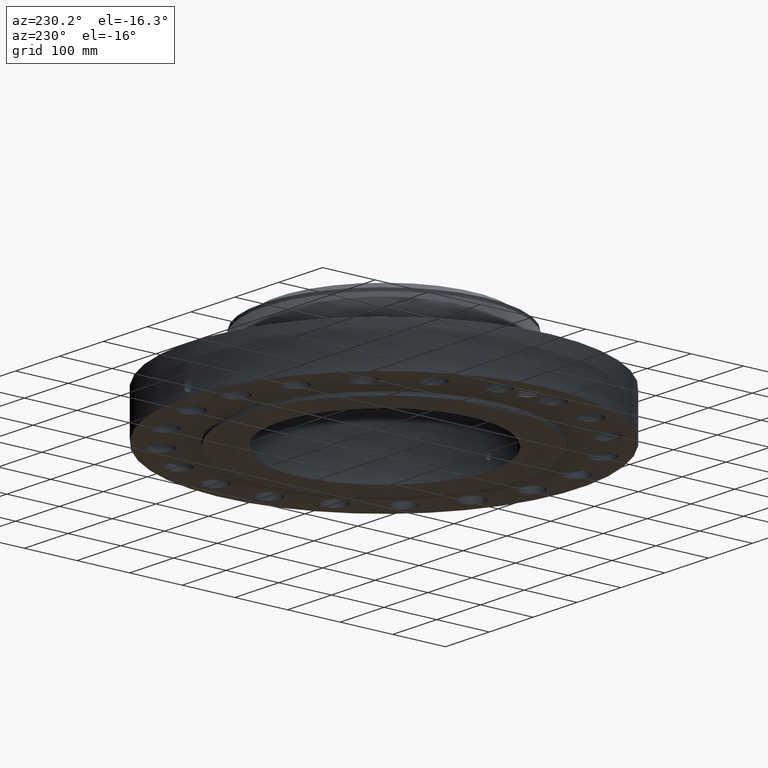
[diagram: clean part render]
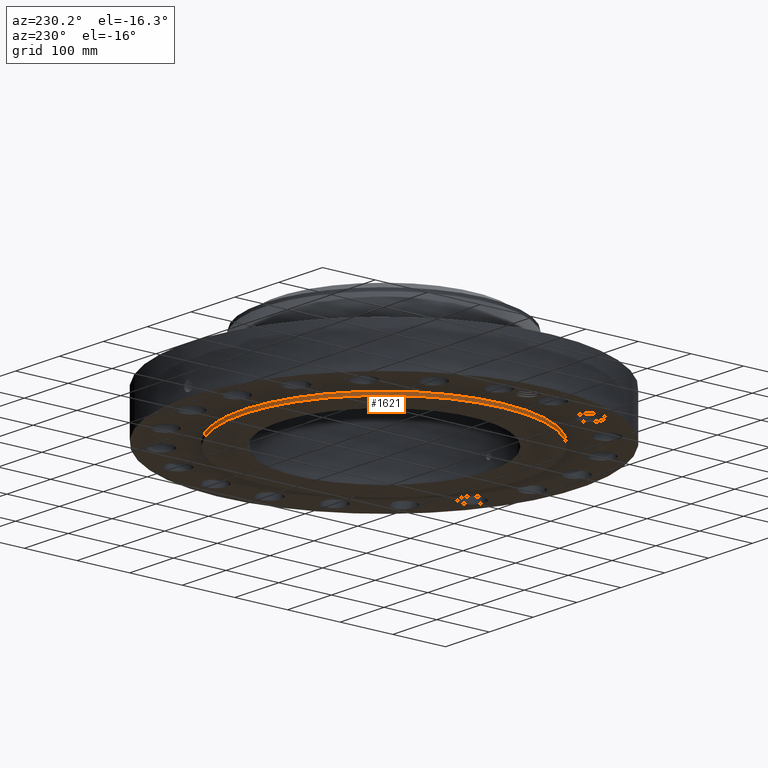
[diagram: same view with one face highlighted and labeled with its STEP entity id]
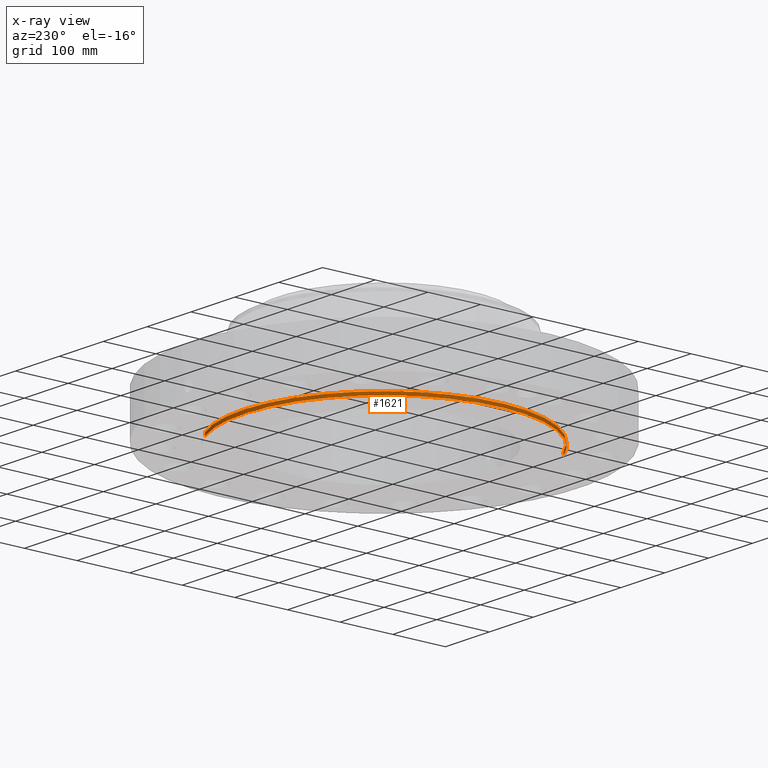
[diagram: x-ray of the same camera — body ghosted, the highlighted face saturated]
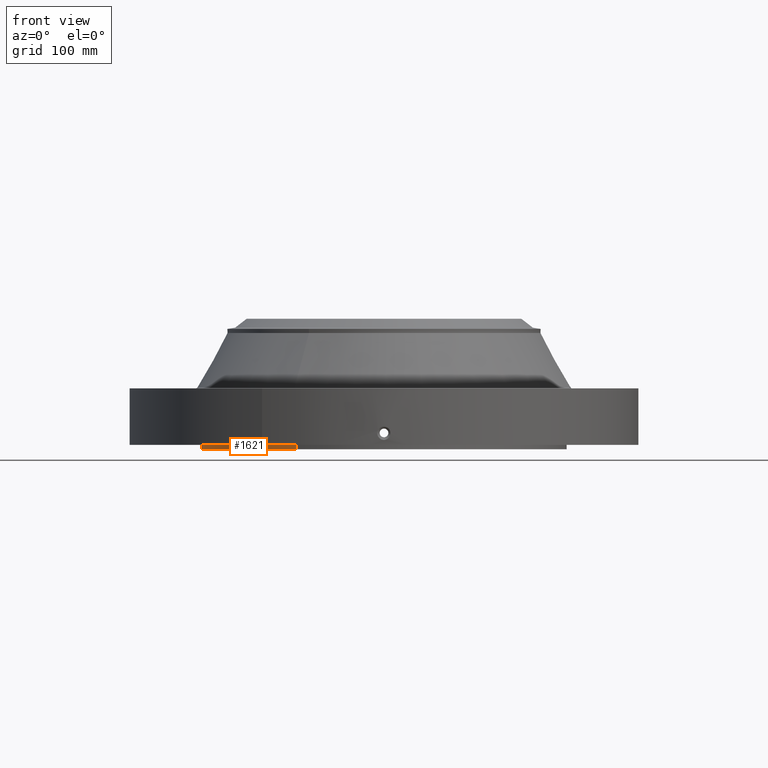
[diagram: same view with one face highlighted and labeled with its STEP entity id]
A machine part, auxiliary view. The second image highlights one B-rep face of the part: STEP entity #1621.
The next image is the same camera in x-ray: the body ghosted, the highlighted face saturated — about 0% of this face is hidden behind the body in this view.
A second angle (front view) of the same face is appended — the face is thin or edge-on in the first view.
In plain terms, the highlighted cylindrical surface (partial cylindrical patch) has radius 266.7 mm, axis along (0, 0, -1).
Its self-contained STEP definition (entity closure, byte-faithful):
#263=AXIS2_PLACEMENT_3D('Circle Axis2P3D',#261,#262,$) ;
#1582=AXIS2_PLACEMENT_3D('Cylinder Axis2P3D',#1579,#1580,#1581) ;
#1612=AXIS2_PLACEMENT_3D('Circle Axis2P3D',#1610,#1611,$) ;
#256=CARTESIAN_POINT('Vertex',(5.03396815536,9.21461689989,0.250000000001)) ;
#258=CARTESIAN_POINT('Vertex',(-5.03396815536,-9.21461689989,0.250000000001)) ;
#261=CARTESIAN_POINT('Axis2P3D Location',(0.,0.,0.250000000001)) ;
#1579=CARTESIAN_POINT('Axis2P3D Location',(0.,0.,3.75000000001)) ;
#1588=CARTESIAN_POINT('Vertex',(5.03396815536,9.21461689989,5.59482469102E-016)) ;
#1590=CARTESIAN_POINT('Vertex',(-5.03396815536,-9.21461689989,5.59482469102E-016)) ;
#1593=CARTESIAN_POINT('Line Origine',(5.03396815536,9.21461689989,0.125000000001)) ;
#1598=CARTESIAN_POINT('Line Origine',(-5.03396815536,-9.21461689989,0.125000000001)) ;
#1610=CARTESIAN_POINT('Axis2P3D Location',(0.,0.,1.1189649382E-015)) ;
#262=DIRECTION('Axis2P3D Direction',(0.,0.,-0.0393700787402)) ;
#1580=DIRECTION('Axis2P3D Direction',(0.,0.,-0.0393700787402)) ;
#1581=DIRECTION('Axis2P3D XDirection',(-0.0188750212049,-0.0345504945626,0.)) ;
#1594=DIRECTION('Vector Direction',(0.,0.,-0.0393700787402)) ;
#1599=DIRECTION('Vector Direction',(0.,0.,-0.0393700787402)) ;
#1611=DIRECTION('Axis2P3D Direction',(0.,0.,-0.0393700787402)) ;
#1595=VECTOR('Line Direction',#1594,0.0393700787402) ;
#1600=VECTOR('Line Direction',#1599,0.0393700787402) ;
#1616=ORIENTED_EDGE('',*,*,#1614,.F.) ;
#1617=ORIENTED_EDGE('',*,*,#1602,.T.) ;
#1618=ORIENTED_EDGE('',*,*,#265,.T.) ;
#1619=ORIENTED_EDGE('',*,*,#1597,.F.) ;
#1621=ADVANCED_FACE('PartBody',(#1620),#1583,.T.) ;
#264=CIRCLE('generated circle',#263,10.5) ;
#1613=CIRCLE('generated circle',#1612,10.5) ;
#1583=CYLINDRICAL_SURFACE('generated cylinder',#1582,10.5) ;
#265=EDGE_CURVE('',#259,#257,#264,.T.) ;
#1597=EDGE_CURVE('',#1589,#257,#1596,.F.) ;
#1602=EDGE_CURVE('',#1591,#259,#1601,.F.) ;
#1614=EDGE_CURVE('',#1591,#1589,#1613,.T.) ;
#1615=EDGE_LOOP('',(#1616,#1617,#1618,#1619)) ;
#1620=FACE_OUTER_BOUND('',#1615,.T.) ;
#1596=LINE('Line',#1593,#1595) ;
#1601=LINE('Line',#1598,#1600) ;
#257=VERTEX_POINT('',#256) ;
#259=VERTEX_POINT('',#258) ;
#1589=VERTEX_POINT('',#1588) ;
#1591=VERTEX_POINT('',#1590) ;